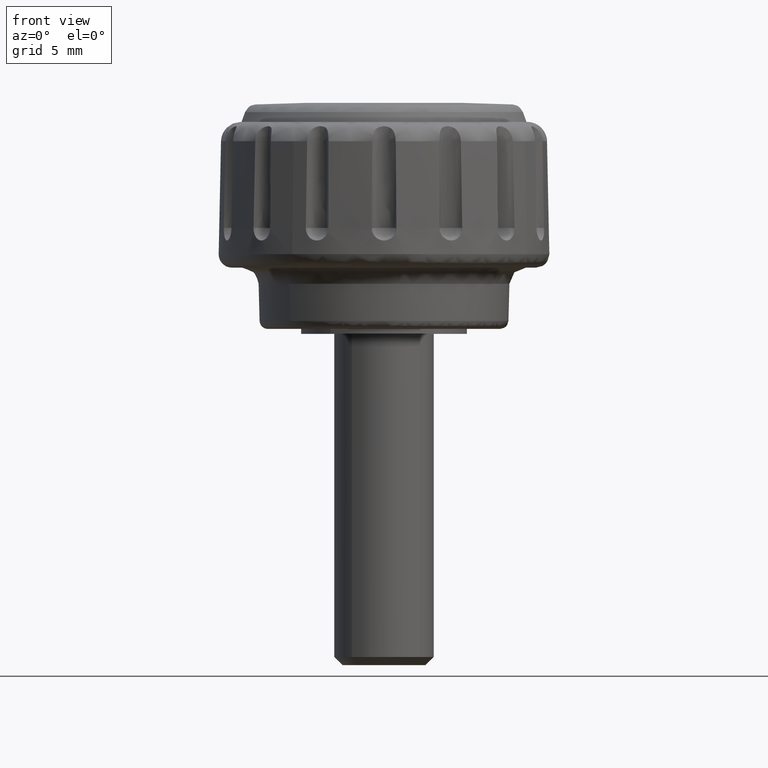
[diagram: clean part render]
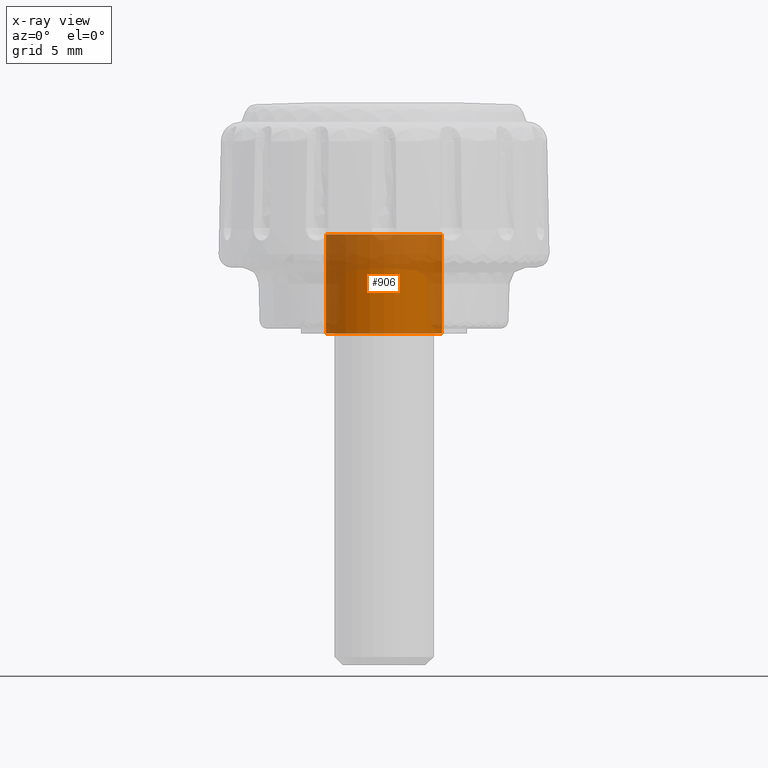
[diagram: x-ray — body ghosted, one internal face saturated and labeled with its STEP entity id]
A machine part, front view, then the same camera in x-ray: the body is ghosted and one INTERNAL B-rep face — a face not visible from any outside direction — is saturated and labeled: STEP entity #906.
In plain terms, the highlighted face is a freeform B-spline surface patch.
Its self-contained STEP definition (entity closure, byte-faithful):
#745=CARTESIAN_POINT('',(2.260097134337089,2.672444750291627,6.150000000000001));
#746=CARTESIAN_POINT('',(2.336581354930514,2.607761741310302,6.150000000000001));
#747=CARTESIAN_POINT('',(2.409241014928138,2.538810298543006,6.150000000000001));
#748=CARTESIAN_POINT('',(4.948051313471143,0.129569283614868,6.150000000000002));
#749=CARTESIAN_POINT('',(2.538810298543006,-2.409241014928138,6.150000000000001));
#750=CARTESIAN_POINT('',(0.129569283614868,-4.948051313471143,6.150000000000002));
#751=CARTESIAN_POINT('',(-2.409241014928138,-2.538810298543006,6.150000000000001));
#752=CARTESIAN_POINT('',(-4.948051313471143,-0.129569283614868,6.150000000000002));
#753=CARTESIAN_POINT('',(-2.538810298543006,2.409241014928138,6.150000000000001));
#754=CARTESIAN_POINT('',(2.260097134337089,2.672444750291627,-0.153750000000000));
#755=CARTESIAN_POINT('',(2.336581354930514,2.607761741310302,-0.153750000000001));
#756=CARTESIAN_POINT('',(2.409241014928138,2.538810298543006,-0.153750000000001));
#757=CARTESIAN_POINT('',(4.948051313471143,0.129569283614868,-0.153750000000000));
#758=CARTESIAN_POINT('',(2.538810298543006,-2.409241014928138,-0.153750000000001));
#759=CARTESIAN_POINT('',(0.129569283614868,-4.948051313471143,-0.153750000000000));
#760=CARTESIAN_POINT('',(-2.409241014928138,-2.538810298543006,-0.153750000000001));
#761=CARTESIAN_POINT('',(-4.948051313471143,-0.129569283614868,-0.153750000000000));
#762=CARTESIAN_POINT('',(-2.538810298543006,2.409241014928138,-0.153750000000001));
#770=(BOUNDED_SURFACE()B_SPLINE_SURFACE(2,1,((#745,#754),(#746,#755),(#747,#756),(#748,#757),(#749,#758),(#750,#759),(#751,#760),(#752,#761),(#753,#762)),.UNSPECIFIED.,.F.,.F.,.U.)B_SPLINE_SURFACE_WITH_KNOTS((3,2,2,2,3),(2,2),(0.0,0.231959594928934,6.030949468152262,11.829939341375590,17.628929214598919),(0.0,6.303750000000003),.UNSPECIFIED.)GEOMETRIC_REPRESENTATION_ITEM()RATIONAL_B_SPLINE_SURFACE(((0.977505800795127,0.977505800795127),(0.988284271247462,0.988284271247462),(1.0,1.0),(0.707106781186548,0.707106781186548),(1.0,1.0),(0.707106781186548,0.707106781186548),(1.0,1.0),(0.707106781186548,0.707106781186548),(1.0,1.0)))REPRESENTATION_ITEM('')SURFACE());
#771=CARTESIAN_POINT('',(2.260097173420925,2.672444796503169,6.0));
#772=VERTEX_POINT('',#771);
#773=CARTESIAN_POINT('',(3.500000000000000,0.0,6.0));
#774=VERTEX_POINT('',#773);
#775=CARTESIAN_POINT('',(2.260097173420925,2.672444796503169,6.0));
#776=CARTESIAN_POINT('',(2.411265527519325,2.544617656483456,6.000000000000020));
#777=CARTESIAN_POINT('',(2.708669466826501,2.246341315505336,5.999999999999950));
#778=CARTESIAN_POINT('',(3.033989235684428,1.774982248701012,6.000000000000078));
#779=CARTESIAN_POINT('',(3.289945646908111,1.237681836230862,5.999999999999957));
#780=CARTESIAN_POINT('',(3.457730045578309,0.665174006242074,6.000000000000010));
#781=CARTESIAN_POINT('',(3.500021597976645,0.221726033389296,5.999999999999949));
#782=CARTESIAN_POINT('',(3.500000000000000,0.0,6.0));
#783=B_SPLINE_CURVE_WITH_KNOTS('',3,(#775,#776,#777,#778,#779,#780,#781,#782),.UNSPECIFIED.,.F.,.U.,(4,1,1,1,1,4),(6.969822E-009,0.593907064845510,1.259087792285031,1.710451271249326,2.375634785463928,3.040811543065578),.UNSPECIFIED.);
#784=EDGE_CURVE('',#772,#774,#783,.T.);
#785=ORIENTED_EDGE('',*,*,#784,.F.);
#786=CARTESIAN_POINT('',(2.260097173420925,2.672444796503169,-1.703657E-016));
#787=VERTEX_POINT('',#786);
#788=CARTESIAN_POINT('',(2.260097173420925,2.672444796503169,6.0));
#789=CARTESIAN_POINT('',(2.260097173420925,2.672444796503169,-1.703657E-016));
#790=QUASI_UNIFORM_CURVE('',1,(#788,#789),.UNSPECIFIED.,.F.,.U.);
#791=EDGE_CURVE('',#772,#787,#790,.T.);
#792=ORIENTED_EDGE('',*,*,#791,.T.);
#793=CARTESIAN_POINT('',(3.500000000000000,0.0,0.0));
#794=VERTEX_POINT('',#793);
#795=CARTESIAN_POINT('',(2.260097173420925,2.672444796503169,-1.703657E-016));
#796=CARTESIAN_POINT('',(2.441510734562185,2.519063329921298,-1.605878E-016));
#797=CARTESIAN_POINT('',(2.789494352581277,2.157970068150766,-1.375684E-016));
#798=CARTESIAN_POINT('',(3.137011072823223,1.595249699988267,-1.016956E-016));
#799=CARTESIAN_POINT('',(3.339578042855076,1.077890252051210,-6.871443E-017));
#800=CARTESIAN_POINT('',(3.466015296713431,0.578061019278740,-3.685081E-017));
#801=CARTESIAN_POINT('',(3.500029399994450,0.221727794479143,-1.413493E-017));
#802=CARTESIAN_POINT('',(3.500000000000000,0.0,0.0));
#803=B_SPLINE_CURVE_WITH_KNOTS('',3,(#795,#796,#797,#798,#799,#800,#801,#802),.UNSPECIFIED.,.F.,.U.,(4,1,1,1,1,4),(6.969822E-009,0.712690062122655,1.496656243692291,1.971773351552379,2.375634785463928,3.040811543065578),.UNSPECIFIED.);
#804=EDGE_CURVE('',#787,#794,#803,.T.);
#805=ORIENTED_EDGE('',*,*,#804,.T.);
#806=CARTESIAN_POINT('',(-0.000000245500197,-3.499999999999992,0.0));
#807=VERTEX_POINT('',#806);
#808=CARTESIAN_POINT('',(3.500000000000000,0.0,0.0));
#809=CARTESIAN_POINT('',(3.500063776086970,-0.272030406242234,0.0));
#810=CARTESIAN_POINT('',(3.447981655029332,-0.715832179842998,0.0));
#811=CARTESIAN_POINT('',(3.278873156434365,-1.249567575910648,0.0));
#812=CARTESIAN_POINT('',(3.058036159529438,-1.731787429788888,0.0));
#813=CARTESIAN_POINT('',(2.780699475528571,-2.152409706738879,0.0));
#814=CARTESIAN_POINT('',(2.409690524411214,-2.551742879040798,0.0));
#815=CARTESIAN_POINT('',(2.045496415614410,-2.854403044524920,0.0));
#816=CARTESIAN_POINT('',(1.642165730365064,-3.102922572366876,0.0));
#817=CARTESIAN_POINT('',(1.170078864823934,-3.312194263327999,0.0));
#818=CARTESIAN_POINT('',(0.629948077497395,-3.461668990610366,0.0));
#819=CARTESIAN_POINT('',(0.214757719303092,-3.500021316249343,0.0));
#820=CARTESIAN_POINT('',(-0.000000245500197,-3.499999999999992,0.0));
#821=B_SPLINE_CURVE_WITH_KNOTS('',3,(#808,#809,#810,#811,#812,#813,#814,#815,#816,#817,#818,#819,#820),.UNSPECIFIED.,.F.,.U.,(4,1,1,1,1,1,1,1,1,1,4),(3.962048E-009,0.816077428200009,1.331503844706642,1.675118036877533,2.405301065367741,2.834813603674565,3.307281904426971,3.822701574562101,4.252222826955151,4.853547991108385,5.497821778431768),.UNSPECIFIED.);
#822=EDGE_CURVE('',#794,#807,#821,.T.);
#823=ORIENTED_EDGE('',*,*,#822,.T.);
#824=CARTESIAN_POINT('',(-3.500000000000000,0.0,0.0));
#825=VERTEX_POINT('',#824);
#826=CARTESIAN_POINT('',(-0.000000245500197,-3.499999999999992,0.0));
#827=CARTESIAN_POINT('',(-0.272030435165354,-3.500063568995985,0.0));
#828=CARTESIAN_POINT('',(-0.744464725222991,-3.444621909486696,0.0));
#829=CARTESIAN_POINT('',(-1.399419404231318,-3.228264257567594,0.0));
#830=CARTESIAN_POINT('',(-1.993441985822664,-2.906078120095368,0.0));
#831=CARTESIAN_POINT('',(-2.478403543720322,-2.498018648671254,0.0));
#832=CARTESIAN_POINT('',(-2.817706045198512,-2.089633297764599,0.0));
#833=CARTESIAN_POINT('',(-3.075680057169212,-1.693132246374000,0.0));
#834=CARTESIAN_POINT('',(-3.284575612860308,-1.251460009224650,0.0));
#835=CARTESIAN_POINT('',(-3.456507421582339,-0.658573190103723,0.0));
#836=CARTESIAN_POINT('',(-3.500035774382244,-0.243393899549485,0.0));
#837=CARTESIAN_POINT('',(-3.500000000000000,0.0,0.0));
#838=B_SPLINE_CURVE_WITH_KNOTS('',3,(#826,#827,#828,#829,#830,#831,#832,#833,#834,#835,#836,#837),.UNSPECIFIED.,.F.,.U.,(4,1,1,1,1,1,1,1,1,4),(4.045444E-009,0.816077387189751,1.417407481252344,2.061685867594368,2.834813460749286,3.307281738168166,3.650893923882973,4.252222612900439,4.767644824798248,5.497821501694097),.UNSPECIFIED.);
#839=EDGE_CURVE('',#807,#825,#838,.T.);
#840=ORIENTED_EDGE('',*,*,#839,.T.);
#841=CARTESIAN_POINT('',(-2.538810266635891,2.409240959511445,5.412337E-016));
#842=VERTEX_POINT('',#841);
#843=CARTESIAN_POINT('',(-3.500000000000000,0.0,0.0));
#844=CARTESIAN_POINT('',(-3.500059137571972,0.262964909057037,5.907482E-017));
#845=CARTESIAN_POINT('',(-3.454539487819718,0.664296286633994,1.492335E-016));
#846=CARTESIAN_POINT('',(-3.294863724084167,1.209842278728058,2.717899E-016));
#847=CARTESIAN_POINT('',(-3.043062927443484,1.781203939524130,4.001458E-016));
#848=CARTESIAN_POINT('',(-2.758007027578862,2.178400105074981,4.893755E-016));
#849=CARTESIAN_POINT('',(-2.538810266635891,2.409240959511445,5.412337E-016));
#850=B_SPLINE_CURVE_WITH_KNOTS('',3,(#843,#844,#845,#846,#847,#848,#849),.UNSPECIFIED.,.F.,.U.,(4,1,1,1,4),(3.116382E-009,0.788880538469944,1.204082865586517,1.702316680634013,2.657279324881051),.UNSPECIFIED.);
#851=EDGE_CURVE('',#825,#842,#850,.T.);
#852=ORIENTED_EDGE('',*,*,#851,.T.);
#853=CARTESIAN_POINT('',(-2.538810266786954,2.409240959352257,5.999999999999861));
#854=VERTEX_POINT('',#853);
#855=CARTESIAN_POINT('',(-2.538810266786954,2.409240959352257,5.999999999999861));
#856=CARTESIAN_POINT('',(-2.538810266635891,2.409240959511445,5.412337E-016));
#857=QUASI_UNIFORM_CURVE('',1,(#855,#856),.UNSPECIFIED.,.F.,.U.);
#858=EDGE_CURVE('',#854,#842,#857,.T.);
#859=ORIENTED_EDGE('',*,*,#858,.F.);
#860=CARTESIAN_POINT('',(-3.500000000000000,0.0,6.0));
#861=VERTEX_POINT('',#860);
#862=CARTESIAN_POINT('',(-3.500000000000000,0.0,6.0));
#863=CARTESIAN_POINT('',(-3.500031831644760,0.235280796579207,5.999999999999994));
#864=CARTESIAN_POINT('',(-3.459366567570066,0.636624014125230,5.999999999999953));
#865=CARTESIAN_POINT('',(-3.283667813791115,1.264643676863682,5.999999999999929));
#866=CARTESIAN_POINT('',(-2.998641195593952,1.853469765144796,5.999999999999926));
#867=CARTESIAN_POINT('',(-2.700789080684841,2.238596096142759,5.999999999999842));
#868=CARTESIAN_POINT('',(-2.538810266786954,2.409240959352257,5.999999999999861));
#869=B_SPLINE_CURVE_WITH_KNOTS('',3,(#862,#863,#864,#865,#866,#867,#868),.UNSPECIFIED.,.F.,.U.,(4,1,1,1,4),(3.116862E-009,0.705839894973482,1.204082865487288,1.951439432805669,2.657279324661592),.UNSPECIFIED.);
#870=EDGE_CURVE('',#861,#854,#869,.T.);
#871=ORIENTED_EDGE('',*,*,#870,.F.);
#872=CARTESIAN_POINT('',(-0.000000245500197,-3.499999999999992,5.999999999999999));
#873=VERTEX_POINT('',#872);
#874=CARTESIAN_POINT('',(-0.000000245500197,-3.499999999999992,5.999999999999999));
#875=CARTESIAN_POINT('',(-0.243393280071641,-3.500040245534483,6.000000000000004));
#876=CARTESIAN_POINT('',(-0.658572260561883,-3.456502636543861,5.999999999999991));
#877=CARTESIAN_POINT('',(-1.251458195975132,-3.284577966099868,6.000000000000012));
#878=CARTESIAN_POINT('',(-1.758090015316713,-3.044964445142633,6.000000000000008));
#879=CARTESIAN_POINT('',(-2.170846177853446,-2.758022692425374,5.999999999999991));
#880=CARTESIAN_POINT('',(-2.531964166913584,-2.430724123044833,5.999999999999991));
#881=CARTESIAN_POINT('',(-2.839342633677636,-2.069943417737806,6.000000000000041));
#882=CARTESIAN_POINT('',(-3.148120929796206,-1.568838399224234,5.999999999999929));
#883=CARTESIAN_POINT('',(-3.420601703110584,-0.887608088949353,6.000000000000045));
#884=CARTESIAN_POINT('',(-3.500123733316356,-0.329305811581200,5.999999999999996));
#885=CARTESIAN_POINT('',(-3.500000000000000,0.0,6.0));
#886=B_SPLINE_CURVE_WITH_KNOTS('',3,(#874,#875,#876,#877,#878,#879,#880,#881,#882,#883,#884,#885),.UNSPECIFIED.,.F.,.U.,(4,1,1,1,1,1,1,1,1,4),(4.045444E-009,0.730173040534304,1.245599910871448,1.846925800470517,2.405300944219052,2.748910756599960,3.307281738168166,3.822701382159297,4.509934723405685,5.497821501694097),.UNSPECIFIED.);
#887=EDGE_CURVE('',#873,#861,#886,.T.);
#888=ORIENTED_EDGE('',*,*,#887,.F.);
#889=CARTESIAN_POINT('',(3.500000000000000,0.0,6.0));
#890=CARTESIAN_POINT('',(3.500067997769892,-0.272032369193021,5.999999999999997));
#891=CARTESIAN_POINT('',(3.451330150000259,-0.687194390643250,5.999999999999993));
#892=CARTESIAN_POINT('',(3.272286645991274,-1.277440677968799,6.000000000000010));
#893=CARTESIAN_POINT('',(3.069532095660991,-1.706119516855102,6.000000000000012));
#894=CARTESIAN_POINT('',(2.777489921949068,-2.149054865647718,5.999999999999980));
#895=CARTESIAN_POINT('',(2.415781589907628,-2.558135898354562,6.000000000000026));
#896=CARTESIAN_POINT('',(1.885616830210688,-2.977169431031864,5.999999999999987));
#897=CARTESIAN_POINT('',(1.306624273228371,-3.268608091609548,6.000000000000014));
#898=CARTESIAN_POINT('',(0.658572054796575,-3.456502867830366,5.999999999999943));
#899=CARTESIAN_POINT('',(0.243393272204385,-3.500038331300606,6.000000000000033));
#900=CARTESIAN_POINT('',(-0.000000245500197,-3.499999999999992,5.999999999999999));
#901=B_SPLINE_CURVE_WITH_KNOTS('',3,(#889,#890,#891,#892,#893,#894,#895,#896,#897,#898,#899,#900),.UNSPECIFIED.,.F.,.U.,(4,1,1,1,1,1,1,1,1,4),(3.961460E-009,0.816077428199544,1.245599973510015,1.846925893424314,2.233493826537557,2.834813603674474,3.479087608711151,4.252222826955158,4.767645064708206,5.497821778431770),.UNSPECIFIED.);
#902=EDGE_CURVE('',#774,#873,#901,.T.);
#903=ORIENTED_EDGE('',*,*,#902,.F.);
#904=EDGE_LOOP('',(#785,#792,#805,#823,#840,#852,#859,#871,#888,#903));
#905=FACE_OUTER_BOUND('',#904,.T.);
#906=ADVANCED_FACE('',(#905),#770,.F.);